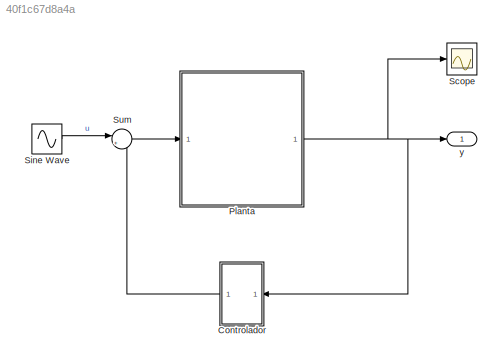
MODEL slx_40f1c67d8a4a
KIND model
CONFIG AbsTol = auto
CONFIG EnableMultiTasking = off
CONFIG FixedStep = 0.00001
CONFIG MaxStep = 0.0001
CONFIG MinStep = auto
CONFIG RelTol = 1e-3
CONFIG SampleTimeConstraint = Unconstrained
CONFIG SolverName = FixedStepAuto
CONFIG StartTime = 0.0
CONFIG StopTime = 20
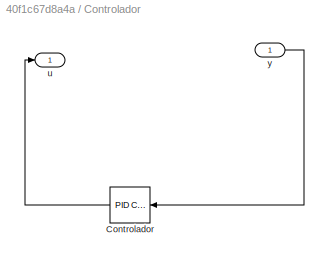
BLOCK [SubSystem] Controlador
  Commented = on
  Ports = [1, 1]
  RequestExecContextInheritance = off
BLOCK [Reference] Controlador/Controlador  REF=slpidlib/PID Controller
  Ports = [1, 1]
  SourceBlock = slpidlib/PID Controller
  SourceProductBaseCode = SL
  SourceType = PID 1dof
BLOCK [Outport] Controlador/u
BLOCK [Inport] Controlador/y
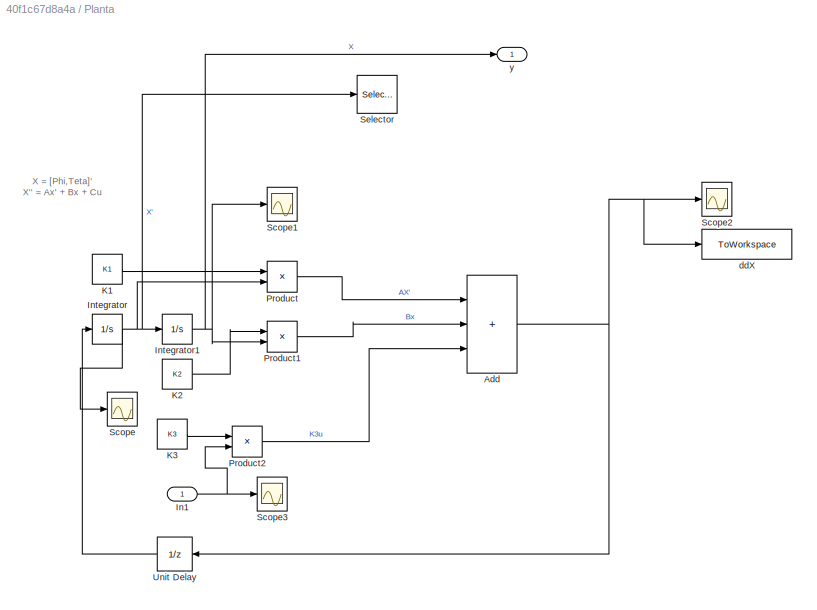
BLOCK [SubSystem] Planta
  Ports = [1, 1]
  RequestExecContextInheritance = off
BLOCK [Sum] Planta/Add
  IconShape = rectangular
  Inputs = +++
  Ports = [3, 1]
BLOCK [Inport] Planta/In1
  NameLocation = right
BLOCK [Integrator] Planta/Integrator
  Ports = [1, 1]
BLOCK [Integrator] Planta/Integrator1
  Ports = [1, 1]
BLOCK [Constant] Planta/K1
  Value = K1
  VectorParams1D = off
BLOCK [Constant] Planta/K2
  Value = K2
  VectorParams1D = off
BLOCK [Constant] Planta/K3
  Value = K3
  VectorParams1D = off
BLOCK [Product] Planta/Product
  Multiplication = Matrix(*)
  Ports = [2, 1]
BLOCK [Product] Planta/Product1
  Multiplication = Matrix(*)
  Ports = [2, 1]
BLOCK [Product] Planta/Product2
  Ports = [2, 1]
BLOCK [Scope] Planta/Scope
  Floating = off
  NumInputPorts = 1
  Ports = [1]
  ScopeSpecificationString = Simulink.scopes.TimeScopeBlockCfg('CurrentConfiguration', extmgr.ConfigurationSet(extmgr.Configuration('Core','General UI',true),extmgr.Configuration('Core','Source UI',true),extmgr.Configuration('Sources','WiredSimulink',true),extmgr.Configuration('Visuals','Time Domain',true,'SerializedDisplays',{struct('MinYLimReal','-0.16343','MaxYLimReal','0.15255','YLabelReal','','MinYLimMag','0.00000','MaxY...<+1333ch>
BLOCK [Scope] Planta/Scope1
  Floating = off
  NumInputPorts = 1
  Ports = [1]
  ScopeSpecificationString = Simulink.scopes.TimeScopeBlockCfg('CurrentConfiguration', extmgr.ConfigurationSet(extmgr.Configuration('Core','General UI',true),extmgr.Configuration('Core','Source UI',true),extmgr.Configuration('Sources','WiredSimulink',true,'DataLoggingVariableName','ScopeData1'),extmgr.Configuration('Visuals','Time Domain',true,'SerializedDisplays',{struct('MinYLimReal','-0.0227','MaxYLimReal','0.02492','YLabe...<+1421ch>
BLOCK [Scope] Planta/Scope2
  Floating = off
  NumInputPorts = 1
  Ports = [1]
  ScopeSpecificationString = Simulink.scopes.TimeScopeBlockCfg('CurrentConfiguration', extmgr.ConfigurationSet(extmgr.Configuration('Core','General UI',true),extmgr.Configuration('Core','Source UI',true),extmgr.Configuration('Sources','WiredSimulink',true,'DataLoggingVariableName','ScopeData2'),extmgr.Configuration('Visuals','Time Domain',true,'SerializedDisplays',{struct('MinYLimReal','-1.02793','MaxYLimReal','0.98677','YLab...<+1492ch>
BLOCK [Scope] Planta/Scope3
  Floating = off
  NumInputPorts = 1
  Ports = [1]
  ScopeSpecificationString = Simulink.scopes.TimeScopeBlockCfg('CurrentConfiguration', extmgr.ConfigurationSet(extmgr.Configuration('Core','General UI',true),extmgr.Configuration('Core','Source UI',true),extmgr.Configuration('Sources','WiredSimulink',true,'DataLoggingVariableName','ScopeData3'),extmgr.Configuration('Visuals','Time Domain',true,'SerializedDisplays',{struct('MinYLimReal','-1.25','MaxYLimReal','1.25','YLabelReal...<+1344ch>
BLOCK [Selector] Planta/Selector
  Commented = through
  IndexOptions = Index vector (dialog)
  Indices = [1 3]
  InputPortWidth = 3
  OutputSizes = 1
  Ports = [1, 1]
BLOCK [UnitDelay] Planta/Unit Delay
  HasFrameUpgradeWarning = on
  InitialCondition = X0
  SampleTime = -1
BLOCK [ToWorkspace] Planta/ddX
  FixptAsFi = on
  MaxDataPoints = inf
  Ports = [1]
  SampleTime = -1
  VariableName = ddX
BLOCK [Outport] Planta/y
BLOCK [Scope] Scope
  Floating = off
  NumInputPorts = 1
  Ports = [1]
  ScopeSpecificationString = Simulink.scopes.TimeScopeBlockCfg('CurrentConfiguration', extmgr.ConfigurationSet(extmgr.Configuration('Core','General UI',true),extmgr.Configuration('Core','Source UI',true),extmgr.Configuration('Sources','WiredSimulink',true,'DataLoggingVariableName','ScopeData4'),extmgr.Configuration('Visuals','Time Domain',true,'SerializedDisplays',{struct('MinYLimReal','-0.02352','MaxYLimReal','0.02477','YLab...<+1378ch>
BLOCK [Sin] Sine Wave
  Frequency = w*2*pi
  Ports = [0, 1]
  SampleTime = 0
BLOCK [Sum] Sum
  Inputs = |+-
  Ports = [2, 1]
BLOCK [Outport] y
ANNOTATION Planta: X = [Phi,Teta]' X'' = Ax' + Bx + Cu
LINE Controlador/Controlador:1 -> Controlador/u:1
LINE Controlador/y:1 -> Controlador/Controlador:1
LINE Controlador:1 -> Sum:2
NET Planta/Add:1 -> Planta/Scope2:1, Planta/Unit Delay:1, Planta/ddX:1
NET Planta/In1:1 -> Planta/Product2:2, Planta/Scope3:1
NET Planta/Integrator1:1 -> Planta/Product1:2, Planta/Scope1:1, Planta/y:1
NET Planta/Integrator:1 -> Planta/Integrator1:1, Planta/Product:2, Planta/Scope:1, Planta/Selector:1
LINE Planta/K1:1 -> Planta/Product:1
LINE Planta/K2:1 -> Planta/Product1:1
LINE Planta/K3:1 -> Planta/Product2:1
LINE Planta/Product1:1 -> Planta/Add:2
LINE Planta/Product2:1 -> Planta/Add:3
LINE Planta/Product:1 -> Planta/Add:1
LINE Planta/Unit Delay:1 -> Planta/Integrator:1
NET Planta:1 -> Controlador:1, Scope:1, y:1
LINE Sine Wave:1 -> Sum:1
LINE Sum:1 -> Planta:1
note: NET lines group one-source signal fan-out (src -> all destinations, sorted); 1:1 wires keep LINE
